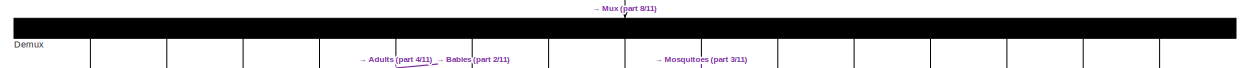
[diagram: root canvas - part 1/11, top center region]
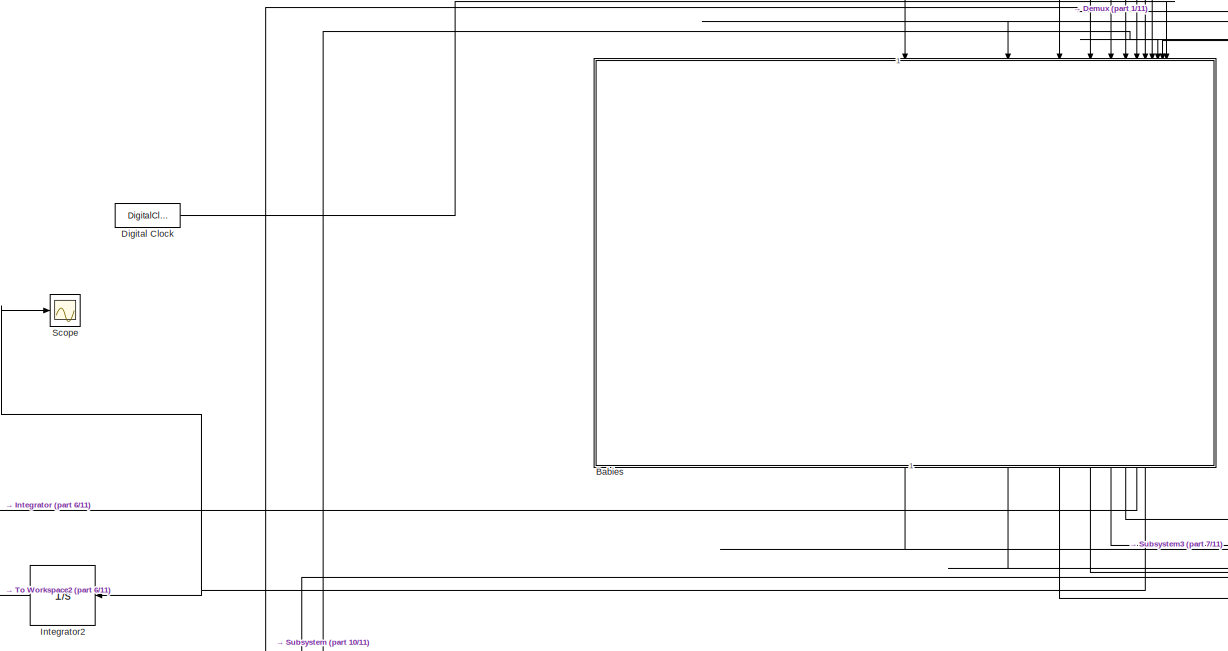
[diagram: root canvas - part 2/11, top left region]
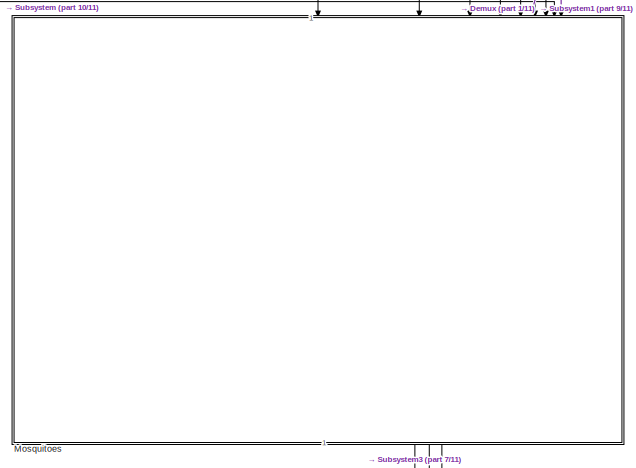
[diagram: root canvas - part 3/11, top center region]
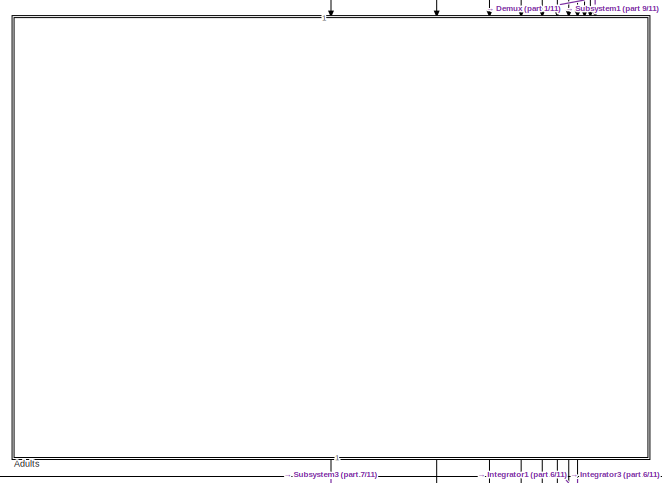
[diagram: root canvas - part 4/11, top center region]
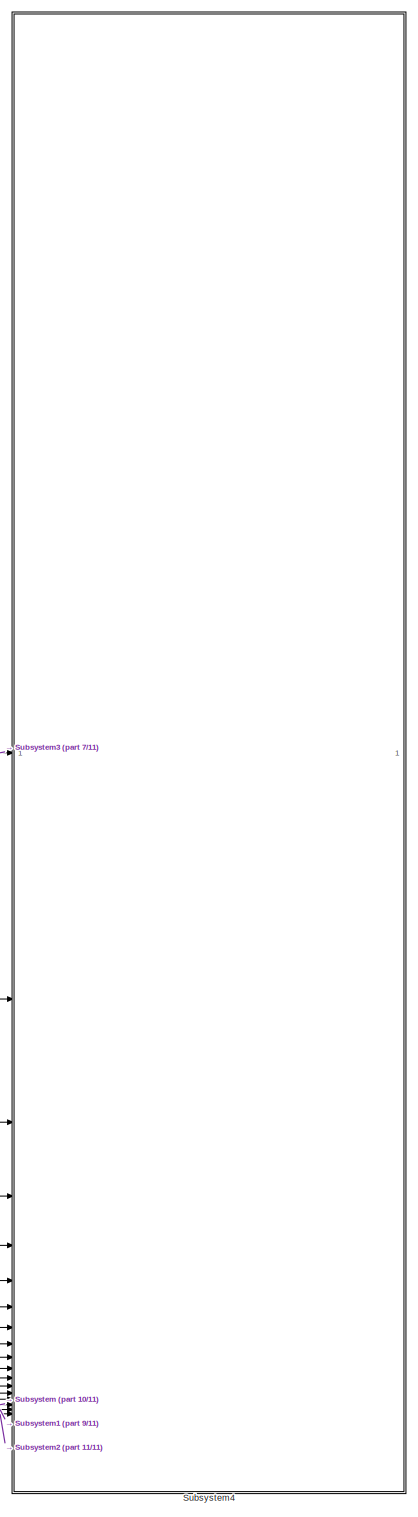
[diagram: root canvas - part 5/11, middle right region]
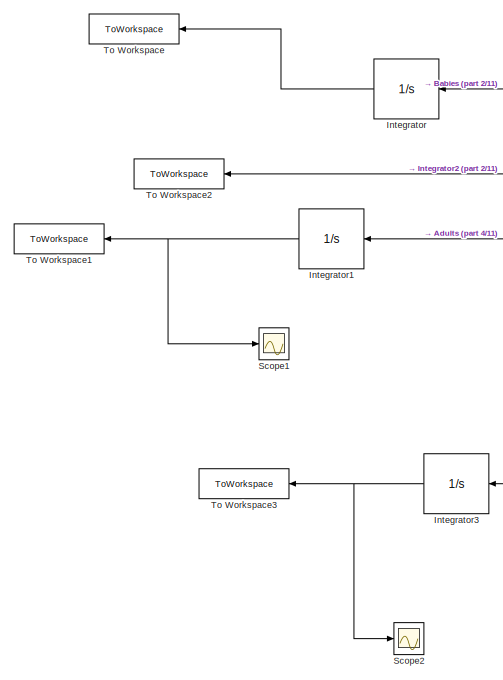
[diagram: root canvas - part 6/11, middle left region]
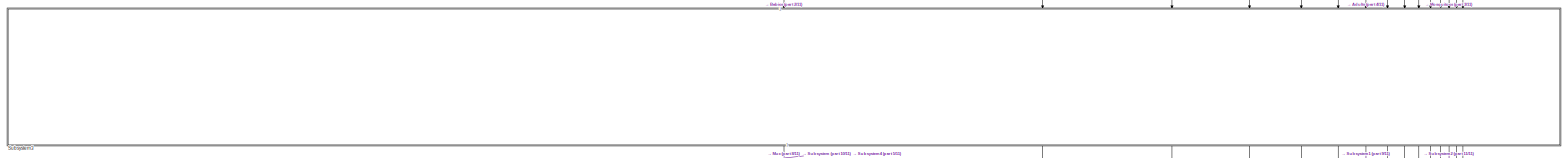
[diagram: root canvas - part 7/11, central region]
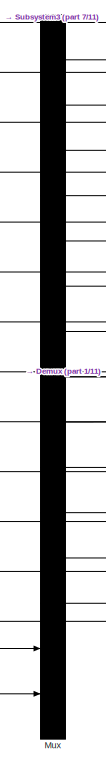
[diagram: root canvas - part 8/11, middle right region]
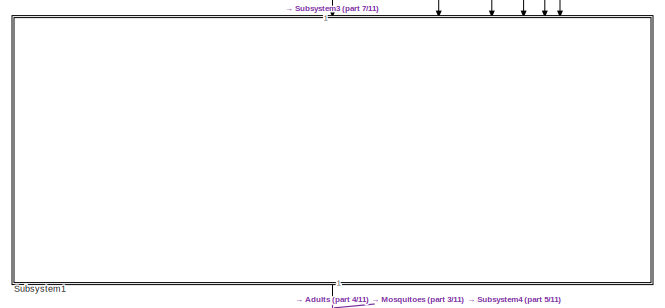
[diagram: root canvas - part 9/11, bottom center region]
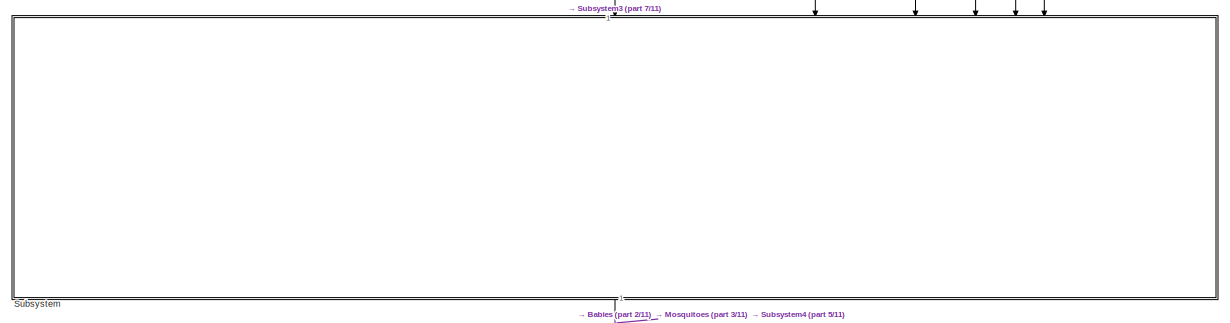
[diagram: root canvas - part 10/11, bottom left region]
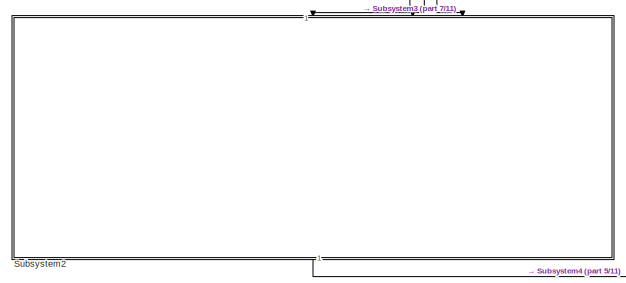
[diagram: root canvas - part 11/11, bottom center region]
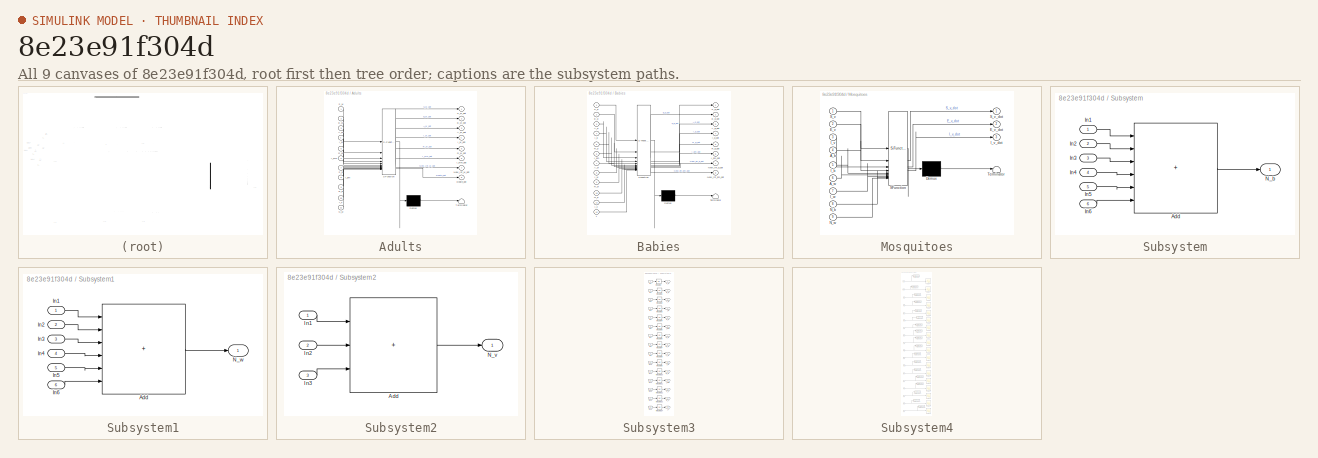
[diagram: thumbnail index - all 9 canvases of the model, root first then tree order]
MODEL slx_8e23e91f304d
KIND model
CONFIG AbsTol = auto
CONFIG EnableMultiTasking = off
CONFIG FixedStep = 0.01
CONFIG MaxStep = auto
CONFIG MinStep = auto
CONFIG RelTol = 1e-3
CONFIG SampleTimeConstraint = Unconstrained
CONFIG SolverName = ode4
CONFIG StartTime = 0.0
CONFIG StopTime = 275
BLOCK [SubSystem] Adults
  ErrorFcn = Stateflow.Translate.translate
  LibrarySourceBlock = simulink/User-Defined\nFunctions/MATLAB Function
  NameLocation = left
  PermitHierarchicalResolution = ExplicitOnly
  SFBlockType = MATLAB Function
  TreatAsAtomicUnit = on
BLOCK [Demux] Adults/ Demux 
  Outputs = 1
BLOCK [S-Function] Adults/ SFunction 
  EnableBusSupport = on
  FunctionName = sf_sfun
  Parameters = P
  PortCounts = [11 9]
  SFcnIsStateOwnerBlock = off
  SFunctionDeploymentMode = off
  Tag = Stateflow S-Function 1
BLOCK [Terminator] Adults/ Terminator 
BLOCK [Inport] Adults/A_w
  Port = 3
BLOCK [Outport] Adults/A_w_dot
  Port = 3
BLOCK [Outport] Adults/Death_dot
  Port = 8
BLOCK [Inport] Adults/E_w
  Port = 2
BLOCK [Outport] Adults/E_w_dot
  Port = 2
BLOCK [Inport] Adults/I_bm
  Port = 8
BLOCK [Inport] Adults/I_v
  Port = 10
BLOCK [Inport] Adults/I_w
  Port = 4
BLOCK [Outport] Adults/I_w_dot
  Port = 4
BLOCK [Inport] Adults/I_wm
  Port = 6
BLOCK [Outport] Adults/I_wm_dot
  Port = 6
BLOCK [Inport] Adults/N_w
  Port = 11
BLOCK [Outport] Adults/New_Inf_w_dot
  Port = 7
BLOCK [Inport] Adults/R_b
  Port = 9
BLOCK [Inport] Adults/R_w
  Port = 5
BLOCK [Outport] Adults/R_w_dot
  Port = 5
BLOCK [Inport] Adults/S_b
  Port = 7
BLOCK [Inport] Adults/S_w
BLOCK [Outport] Adults/S_w_dot
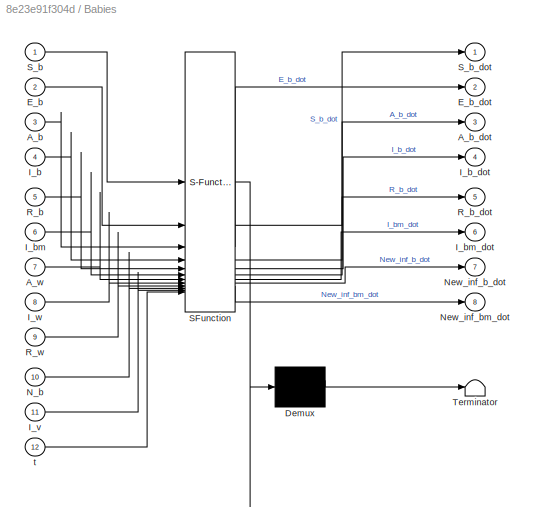
BLOCK [SubSystem] Babies
  ErrorFcn = Stateflow.Translate.translate
  LibrarySourceBlock = simulink/User-Defined\nFunctions/MATLAB Function
  NameLocation = left
  PermitHierarchicalResolution = ExplicitOnly
  SFBlockType = MATLAB Function
  TreatAsAtomicUnit = on
BLOCK [Demux] Babies/ Demux 
  Outputs = 1
BLOCK [S-Function] Babies/ SFunction 
  EnableBusSupport = on
  FunctionName = sf_sfun
  Parameters = P
  PortCounts = [12 9]
  SFcnIsStateOwnerBlock = off
  SFunctionDeploymentMode = off
  Tag = Stateflow S-Function 2
BLOCK [Terminator] Babies/ Terminator 
BLOCK [Inport] Babies/A_b
  Port = 3
BLOCK [Outport] Babies/A_b_dot
  Port = 3
BLOCK [Inport] Babies/A_w
  Port = 7
BLOCK [Inport] Babies/E_b
  Port = 2
BLOCK [Outport] Babies/E_b_dot
  Port = 2
BLOCK [Inport] Babies/I_b
  Port = 4
BLOCK [Outport] Babies/I_b_dot
  Port = 4
BLOCK [Inport] Babies/I_bm
  Port = 6
BLOCK [Outport] Babies/I_bm_dot
  Port = 6
BLOCK [Inport] Babies/I_v
  Port = 11
BLOCK [Inport] Babies/I_w
  Port = 8
BLOCK [Inport] Babies/N_b
  Port = 10
BLOCK [Outport] Babies/New_inf_b_dot
  Port = 7
BLOCK [Outport] Babies/New_inf_bm_dot
  Port = 8
BLOCK [Inport] Babies/R_b
  Port = 5
BLOCK [Outport] Babies/R_b_dot
  Port = 5
BLOCK [Inport] Babies/R_w
  Port = 9
BLOCK [Inport] Babies/S_b
BLOCK [Outport] Babies/S_b_dot
BLOCK [Inport] Babies/t
  Port = 12
BLOCK [Demux] Demux
  NameLocation = left
  Outputs = 15
BLOCK [DigitalClock] Digital Clock
BLOCK [Integrator] Integrator
  NameLocation = top
BLOCK [Integrator] Integrator1
  NameLocation = top
BLOCK [Integrator] Integrator2
  NameLocation = top
BLOCK [Integrator] Integrator3
  NameLocation = top
BLOCK [SubSystem] Mosquitoes
  ErrorFcn = Stateflow.Translate.translate
  LibrarySourceBlock = simulink/User-Defined\nFunctions/MATLAB Function
  NameLocation = left
  PermitHierarchicalResolution = ExplicitOnly
  SFBlockType = MATLAB Function
  TreatAsAtomicUnit = on
BLOCK [Demux] Mosquitoes/ Demux 
  Outputs = 1
BLOCK [S-Function] Mosquitoes/ SFunction 
  EnableBusSupport = on
  FunctionName = sf_sfun
  Parameters = P
  PortCounts = [9 4]
  SFcnIsStateOwnerBlock = off
  SFunctionDeploymentMode = off
  Tag = Stateflow S-Function 3
BLOCK [Terminator] Mosquitoes/ Terminator 
BLOCK [Inport] Mosquitoes/A_b
  Port = 4
BLOCK [Inport] Mosquitoes/A_w
  Port = 6
BLOCK [Inport] Mosquitoes/E_v
  Port = 2
BLOCK [Outport] Mosquitoes/E_v_dot
  Port = 2
BLOCK [Inport] Mosquitoes/I_b
  Port = 5
BLOCK [Inport] Mosquitoes/I_v
  Port = 3
BLOCK [Outport] Mosquitoes/I_v_dot
  Port = 3
BLOCK [Inport] Mosquitoes/I_w
  Port = 7
BLOCK [Inport] Mosquitoes/N_b
  Port = 8
BLOCK [Inport] Mosquitoes/N_w
  Port = 9
BLOCK [Inport] Mosquitoes/S_v
BLOCK [Outport] Mosquitoes/S_v_dot
BLOCK [Mux] Mux
  DisplayOption = bar
  Inputs = 15
BLOCK [Scope] Scope
  Floating = off
  NumInputPorts = 1
  ScopeSpecificationString = Simulink.scopes.TimeScopeBlockCfg('CurrentConfiguration', extmgr.ConfigurationSet(extmgr.Configuration('Core','General UI',true),extmgr.Configuration('Core','Source UI',true),extmgr.Configuration('Sources','WiredSimulink',true,'DataLoggingVariableName','ScopeData1'),extmgr.Configuration('Visuals','Time Domain',true,'SerializedDisplays',{struct('MinYLimReal','-0.03641','MaxYLimReal','0.32766','YLab...<+1453ch>
BLOCK [Scope] Scope1
  Floating = off
  NumInputPorts = 1
  ScopeSpecificationString = Simulink.scopes.TimeScopeBlockCfg('CurrentConfiguration', extmgr.ConfigurationSet(extmgr.Configuration('Core','General UI',true),extmgr.Configuration('Core','Source UI',true),extmgr.Configuration('Sources','WiredSimulink',true,'DataLoggingVariableName','ScopeData1'),extmgr.Configuration('Visuals','Time Domain',true,'SerializedDisplays',{struct('MinYLimReal','-742.13136','MaxYLimReal','6679.18228',...<+1388ch>
BLOCK [Scope] Scope2
  Floating = off
  NumInputPorts = 1
  ScopeSpecificationString = Simulink.scopes.TimeScopeBlockCfg('CurrentConfiguration', extmgr.ConfigurationSet(extmgr.Configuration('Core','General UI',true),extmgr.Configuration('Core','Source UI',true),extmgr.Configuration('Sources','WiredSimulink',true,'DataLoggingVariableName','ScopeData2'),extmgr.Configuration('Visuals','Time Domain',true,'SerializedDisplays',{struct('MinYLimReal','-8.56473','MaxYLimReal','77.08261','YLa...<+1374ch>
BLOCK [SubSystem] Subsystem
  NameLocation = left
BLOCK [Sum] Subsystem/Add
  IconShape = rectangular
  Inputs = ++++++
BLOCK [Inport] Subsystem/In1
BLOCK [Inport] Subsystem/In2
  Port = 2
BLOCK [Inport] Subsystem/In3
  Port = 3
BLOCK [Inport] Subsystem/In4
  Port = 4
BLOCK [Inport] Subsystem/In5
  Port = 5
BLOCK [Inport] Subsystem/In6
  Port = 6
BLOCK [Outport] Subsystem/N_b
BLOCK [SubSystem] Subsystem1
  NameLocation = left
BLOCK [Sum] Subsystem1/Add
  IconShape = rectangular
  Inputs = ++++++
BLOCK [Inport] Subsystem1/In1
BLOCK [Inport] Subsystem1/In2
  Port = 2
BLOCK [Inport] Subsystem1/In3
  Port = 3
BLOCK [Inport] Subsystem1/In4
  Port = 4
BLOCK [Inport] Subsystem1/In5
  Port = 5
BLOCK [Inport] Subsystem1/In6
  Port = 6
BLOCK [Outport] Subsystem1/N_w
BLOCK [SubSystem] Subsystem2
  NameLocation = left
BLOCK [Sum] Subsystem2/Add
  IconShape = rectangular
  Inputs = +++
BLOCK [Inport] Subsystem2/In1
BLOCK [Inport] Subsystem2/In2
  Port = 2
BLOCK [Inport] Subsystem2/In3
  Port = 3
BLOCK [Outport] Subsystem2/N_v
BLOCK [SubSystem] Subsystem3
  NameLocation = left
BLOCK [Outport] Subsystem3/A_b
  NameLocation = top
  Port = 3
BLOCK [Outport] Subsystem3/A_w
  NameLocation = top
  Port = 9
BLOCK [Outport] Subsystem3/E_b
  NameLocation = top
  Port = 2
BLOCK [Outport] Subsystem3/E_v
  NameLocation = top
  Port = 14
BLOCK [Outport] Subsystem3/E_w
  NameLocation = top
  Port = 8
BLOCK [Outport] Subsystem3/I_b
  NameLocation = top
  Port = 4
BLOCK [Outport] Subsystem3/I_bm
  NameLocation = top
  Port = 6
BLOCK [Outport] Subsystem3/I_v
  NameLocation = top
  Port = 15
BLOCK [Outport] Subsystem3/I_w
  NameLocation = top
  Port = 10
BLOCK [Outport] Subsystem3/I_wm
  NameLocation = top
  Port = 12
BLOCK [Inport] Subsystem3/In1
  NameLocation = top
BLOCK [Inport] Subsystem3/In10
  NameLocation = top
  Port = 10
BLOCK [Inport] Subsystem3/In11
  NameLocation = top
  Port = 11
BLOCK [Inport] Subsystem3/In12
  NameLocation = top
  Port = 12
BLOCK [Inport] Subsystem3/In13
  NameLocation = top
  Port = 13
BLOCK [Inport] Subsystem3/In14
  NameLocation = top
  Port = 14
BLOCK [Inport] Subsystem3/In15
  NameLocation = top
  Port = 15
BLOCK [Inport] Subsystem3/In2
  NameLocation = top
  Port = 2
BLOCK [Inport] Subsystem3/In3
  NameLocation = top
  Port = 3
BLOCK [Inport] Subsystem3/In4
  NameLocation = top
  Port = 4
BLOCK [Inport] Subsystem3/In5
  NameLocation = top
  Port = 5
BLOCK [Inport] Subsystem3/In6
  NameLocation = top
  Port = 6
BLOCK [Inport] Subsystem3/In7
  NameLocation = top
  Port = 7
BLOCK [Inport] Subsystem3/In8
  NameLocation = top
  Port = 8
BLOCK [Inport] Subsystem3/In9
  NameLocation = top
  Port = 9
BLOCK [Integrator] Subsystem3/Integrator
  ContinuousStateAttributes = 'S_b'
  InitialCondition = S_b_0
BLOCK [Integrator] Subsystem3/Integrator1
  ContinuousStateAttributes = 'E_b'
  InitialCondition = E_b_0
BLOCK [Integrator] Subsystem3/Integrator10
  ContinuousStateAttributes = 'R_w'
  InitialCondition = R_w_0
BLOCK [Integrator] Subsystem3/Integrator11
  ContinuousStateAttributes = 'I_wm'
  InitialCondition = I_wm_0
BLOCK [Integrator] Subsystem3/Integrator12
  ContinuousStateAttributes = 'S_v'
  InitialCondition = S_v_0
BLOCK [Integrator] Subsystem3/Integrator13
  ContinuousStateAttributes = 'E_v'
  InitialCondition = E_v_0
BLOCK [Integrator] Subsystem3/Integrator14
  ContinuousStateAttributes = 'I_v'
  InitialCondition = I_v_0
BLOCK [Integrator] Subsystem3/Integrator2
  ContinuousStateAttributes = 'A_b'
  InitialCondition = A_b_0
BLOCK [Integrator] Subsystem3/Integrator3
  ContinuousStateAttributes = 'I_b'
  InitialCondition = I_b_0
BLOCK [Integrator] Subsystem3/Integrator4
  ContinuousStateAttributes = 'R_b'
  InitialCondition = R_b_0
BLOCK [Integrator] Subsystem3/Integrator5
  ContinuousStateAttributes = 'I_bm'
  InitialCondition = I_bm_0
BLOCK [Integrator] Subsystem3/Integrator6
  ContinuousStateAttributes = 'S_w'
  InitialCondition = S_w_0
BLOCK [Integrator] Subsystem3/Integrator7
  ContinuousStateAttributes = 'E_w'
  InitialCondition = E_w_0
BLOCK [Integrator] Subsystem3/Integrator8
  ContinuousStateAttributes = 'A_w'
  InitialCondition = A_w_0
BLOCK [Integrator] Subsystem3/Integrator9
  ContinuousStateAttributes = 'I_w'
  InitialCondition = I_w_0
BLOCK [Outport] Subsystem3/R_b
  NameLocation = top
  Port = 5
BLOCK [Outport] Subsystem3/R_w
  NameLocation = top
  Port = 11
BLOCK [Outport] Subsystem3/S_b
  NameLocation = top
BLOCK [Outport] Subsystem3/S_v
  NameLocation = top
  Port = 13
BLOCK [Outport] Subsystem3/S_w
  NameLocation = top
  Port = 7
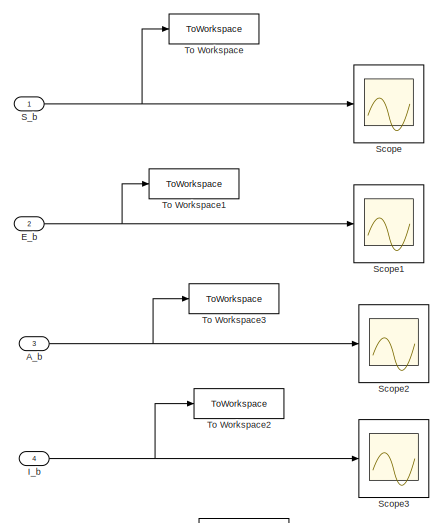
[diagram: Subsystem4 - part 1/2, full width, top band]
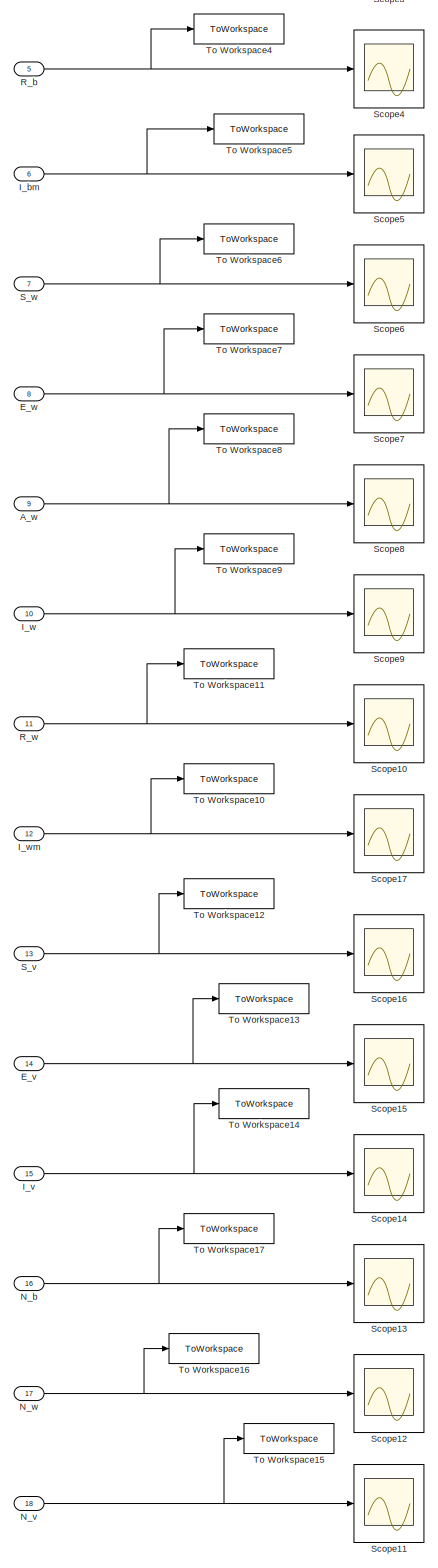
[diagram: Subsystem4 - part 2/2, most of the canvas]
BLOCK [SubSystem] Subsystem4
BLOCK [Inport] Subsystem4/A_b
  Port = 3
BLOCK [Inport] Subsystem4/A_w
  Port = 9
BLOCK [Inport] Subsystem4/E_b
  Port = 2
BLOCK [Inport] Subsystem4/E_v
  Port = 14
BLOCK [Inport] Subsystem4/E_w
  Port = 8
BLOCK [Inport] Subsystem4/I_b
  Port = 4
BLOCK [Inport] Subsystem4/I_bm
  Port = 6
BLOCK [Inport] Subsystem4/I_v
  Port = 15
BLOCK [Inport] Subsystem4/I_w
  Port = 10
BLOCK [Inport] Subsystem4/I_wm
  Port = 12
BLOCK [Inport] Subsystem4/N_b
  Port = 16
BLOCK [Inport] Subsystem4/N_v
  Port = 18
BLOCK [Inport] Subsystem4/N_w
  Port = 17
BLOCK [Inport] Subsystem4/R_b
  Port = 5
BLOCK [Inport] Subsystem4/R_w
  Port = 11
BLOCK [Inport] Subsystem4/S_b
BLOCK [Inport] Subsystem4/S_v
  Port = 13
BLOCK [Inport] Subsystem4/S_w
  Port = 7
BLOCK [Scope] Subsystem4/Scope
  Floating = off
  NumInputPorts = 1
  ScopeSpecificationString = Simulink.scopes.TimeScopeBlockCfg('CurrentConfiguration', extmgr.ConfigurationSet(extmgr.Configuration('Core','General UI',true),extmgr.Configuration('Core','Source UI',true),extmgr.Configuration('Sources','WiredSimulink',true),extmgr.Configuration('Visuals','Time Domain',true,'SerializedDisplays',{struct('MinYLimReal','-525.00383','MaxYLimReal','4725.00043','YLabelReal','','MinYLimMag',' 0.00000'...<+1414ch>
BLOCK [Scope] Subsystem4/Scope1
  Floating = off
  NumInputPorts = 1
  ScopeSpecificationString = Simulink.scopes.TimeScopeBlockCfg('CurrentConfiguration', extmgr.ConfigurationSet(extmgr.Configuration('Core','General UI',true),extmgr.Configuration('Core','Source UI',true),extmgr.Configuration('Sources','WiredSimulink',true,'DataLoggingVariableName','ScopeData1'),extmgr.Configuration('Visuals','Time Domain',true,'SerializedDisplays',{struct('MinYLimReal','-104.64701','MaxYLimReal','941.82311','...<+1456ch>
BLOCK [Scope] Subsystem4/Scope10
  Floating = off
  NumInputPorts = 1
  ScopeSpecificationString = Simulink.scopes.TimeScopeBlockCfg('CurrentConfiguration', extmgr.ConfigurationSet(extmgr.Configuration('Core','General UI',true),extmgr.Configuration('Core','Source UI',true),extmgr.Configuration('Sources','WiredSimulink',true,'DataLoggingVariableName','ScopeData10'),extmgr.Configuration('Visuals','Time Domain',true,'SerializedDisplays',{struct('MinYLimReal','-1300.75279','MaxYLimReal','11706.7751...<+1451ch>
BLOCK [Scope] Subsystem4/Scope11
  Floating = off
  NumInputPorts = 1
  ScopeSpecificationString = Simulink.scopes.TimeScopeBlockCfg('CurrentConfiguration', extmgr.ConfigurationSet(extmgr.Configuration('Core','General UI',true),extmgr.Configuration('Core','Source UI',true),extmgr.Configuration('Sources','WiredSimulink',true,'DataLoggingVariableName','ScopeData11'),extmgr.Configuration('Visuals','Time Domain',true,'SerializedDisplays',{struct('MinYLimReal','-700.00000','MaxYLimReal','111300.0000...<+1460ch>
BLOCK [Scope] Subsystem4/Scope12
  Floating = off
  NumInputPorts = 1
  ScopeSpecificationString = Simulink.scopes.TimeScopeBlockCfg('CurrentConfiguration', extmgr.ConfigurationSet(extmgr.Configuration('Core','General UI',true),extmgr.Configuration('Core','Source UI',true),extmgr.Configuration('Sources','WiredSimulink',true,'DataLoggingVariableName','ScopeData12'),extmgr.Configuration('Visuals','Time Domain',true,'SerializedDisplays',{struct('MinYLimReal','1456.21842','MaxYLimReal','2620.43957'...<+1458ch>
BLOCK [Scope] Subsystem4/Scope13
  Floating = off
  NumInputPorts = 1
  ScopeSpecificationString = Simulink.scopes.TimeScopeBlockCfg('CurrentConfiguration', extmgr.ConfigurationSet(extmgr.Configuration('Core','General UI',true),extmgr.Configuration('Core','Source UI',true),extmgr.Configuration('Sources','WiredSimulink',true,'DataLoggingVariableName','ScopeData13'),extmgr.Configuration('Visuals','Time Domain',true,'SerializedDisplays',{struct('MinYLimReal','2115.08159','MaxYLimReal','4764.99093'...<+1458ch>
BLOCK [Scope] Subsystem4/Scope14
  Floating = off
  NumInputPorts = 1
  ScopeSpecificationString = Simulink.scopes.TimeScopeBlockCfg('CurrentConfiguration', extmgr.ConfigurationSet(extmgr.Configuration('Core','General UI',true),extmgr.Configuration('Core','Source UI',true),extmgr.Configuration('Sources','WiredSimulink',true,'DataLoggingVariableName','ScopeData14'),extmgr.Configuration('Visuals','Time Domain',true,'SerializedDisplays',{struct('MinYLimReal','-83777.46147','MaxYLimReal','173435.01...<+1475ch>
BLOCK [Scope] Subsystem4/Scope15
  Floating = off
  NumInputPorts = 1
  ScopeSpecificationString = Simulink.scopes.TimeScopeBlockCfg('CurrentConfiguration', extmgr.ConfigurationSet(extmgr.Configuration('Core','General UI',true),extmgr.Configuration('Core','Source UI',true),extmgr.Configuration('Sources','WiredSimulink',true,'DataLoggingVariableName','ScopeData15'),extmgr.Configuration('Visuals','Time Domain',true,'SerializedDisplays',{struct('MinYLimReal','-272.89082','MaxYLimReal','2456.01736'...<+1454ch>
BLOCK [Scope] Subsystem4/Scope16
  Floating = off
  NumInputPorts = 1
  ScopeSpecificationString = Simulink.scopes.TimeScopeBlockCfg('CurrentConfiguration', extmgr.ConfigurationSet(extmgr.Configuration('Core','General UI',true),extmgr.Configuration('Core','Source UI',true),extmgr.Configuration('Sources','WiredSimulink',true,'DataLoggingVariableName','ScopeData16'),extmgr.Configuration('Visuals','Time Domain',true,'SerializedDisplays',{struct('MinYLimReal','8532.08555','MaxYLimReal','11830.70305...<+1466ch>
BLOCK [Scope] Subsystem4/Scope17
  Floating = off
  NumInputPorts = 1
  ScopeSpecificationString = Simulink.scopes.TimeScopeBlockCfg('CurrentConfiguration', extmgr.ConfigurationSet(extmgr.Configuration('Core','General UI',true),extmgr.Configuration('Core','Source UI',true),extmgr.Configuration('Sources','WiredSimulink',true,'DataLoggingVariableName','ScopeData17'),extmgr.Configuration('Visuals','Time Domain',true,'SerializedDisplays',{struct('MinYLimReal','-2.37196','MaxYLimReal','21.34763','YL...<+1439ch>
BLOCK [Scope] Subsystem4/Scope2
  Floating = off
  NumInputPorts = 1
  ScopeSpecificationString = Simulink.scopes.TimeScopeBlockCfg('CurrentConfiguration', extmgr.ConfigurationSet(extmgr.Configuration('Core','General UI',true),extmgr.Configuration('Core','Source UI',true),extmgr.Configuration('Sources','WiredSimulink',true,'DataLoggingVariableName','ScopeData2'),extmgr.Configuration('Visuals','Time Domain',true,'SerializedDisplays',{struct('MinYLimReal','-86.01143','MaxYLimReal','774.10281','Y...<+1408ch>
BLOCK [Scope] Subsystem4/Scope3
  Floating = off
  NumInputPorts = 1
  ScopeSpecificationString = Simulink.scopes.TimeScopeBlockCfg('CurrentConfiguration', extmgr.ConfigurationSet(extmgr.Configuration('Core','General UI',true),extmgr.Configuration('Core','Source UI',true),extmgr.Configuration('Sources','WiredSimulink',true,'DataLoggingVariableName','ScopeData3'),extmgr.Configuration('Visuals','Time Domain',true,'SerializedDisplays',{struct('MinYLimReal','-50.80246','MaxYLimReal','457.22217','Y...<+1452ch>
BLOCK [Scope] Subsystem4/Scope4
  Floating = off
  NumInputPorts = 1
  ScopeSpecificationString = Simulink.scopes.TimeScopeBlockCfg('CurrentConfiguration', extmgr.ConfigurationSet(extmgr.Configuration('Core','General UI',true),extmgr.Configuration('Core','Source UI',true),extmgr.Configuration('Sources','WiredSimulink',true,'DataLoggingVariableName','ScopeData4'),extmgr.Configuration('Visuals','Time Domain',true,'SerializedDisplays',{struct('MinYLimReal','-601.5074','MaxYLimReal','5413.56656','...<+1439ch>
BLOCK [Scope] Subsystem4/Scope5
  Floating = off
  NumInputPorts = 1
  ScopeSpecificationString = Simulink.scopes.TimeScopeBlockCfg('CurrentConfiguration', extmgr.ConfigurationSet(extmgr.Configuration('Core','General UI',true),extmgr.Configuration('Core','Source UI',true),extmgr.Configuration('Sources','WiredSimulink',true,'DataLoggingVariableName','ScopeData5'),extmgr.Configuration('Visuals','Time Domain',true,'SerializedDisplays',{struct('MinYLimReal','-0.58214','MaxYLimReal','5.23925','YLab...<+1436ch>
BLOCK [Scope] Subsystem4/Scope6
  Floating = off
  NumInputPorts = 1
  ScopeSpecificationString = Simulink.scopes.TimeScopeBlockCfg('CurrentConfiguration', extmgr.ConfigurationSet(extmgr.Configuration('Core','General UI',true),extmgr.Configuration('Core','Source UI',true),extmgr.Configuration('Sources','WiredSimulink',true,'DataLoggingVariableName','ScopeData6'),extmgr.Configuration('Visuals','Time Domain',true,'SerializedDisplays',{struct('MinYLimReal','-999.9365','MaxYLimReal','8999.99294','...<+1457ch>
BLOCK [Scope] Subsystem4/Scope7
  Floating = off
  NumInputPorts = 1
  ScopeSpecificationString = Simulink.scopes.TimeScopeBlockCfg('CurrentConfiguration', extmgr.ConfigurationSet(extmgr.Configuration('Core','General UI',true),extmgr.Configuration('Core','Source UI',true),extmgr.Configuration('Sources','WiredSimulink',true,'DataLoggingVariableName','ScopeData7'),extmgr.Configuration('Visuals','Time Domain',true,'SerializedDisplays',{struct('MinYLimReal','-349.86268','MaxYLimReal','3148.76414',...<+1380ch>
BLOCK [Scope] Subsystem4/Scope8
  Floating = off
  NumInputPorts = 1
  ScopeSpecificationString = Simulink.scopes.TimeScopeBlockCfg('CurrentConfiguration', extmgr.ConfigurationSet(extmgr.Configuration('Core','General UI',true),extmgr.Configuration('Core','Source UI',true),extmgr.Configuration('Sources','WiredSimulink',true,'DataLoggingVariableName','ScopeData8'),extmgr.Configuration('Visuals','Time Domain',true,'SerializedDisplays',{struct('MinYLimReal','-32.83505','MaxYLimReal','295.51541','Y...<+1426ch>
BLOCK [Scope] Subsystem4/Scope9
  Floating = off
  NumInputPorts = 1
  ScopeSpecificationString = Simulink.scopes.TimeScopeBlockCfg('CurrentConfiguration', extmgr.ConfigurationSet(extmgr.Configuration('Core','General UI',true),extmgr.Configuration('Core','Source UI',true),extmgr.Configuration('Sources','WiredSimulink',true,'DataLoggingVariableName','ScopeData9'),extmgr.Configuration('Visuals','Time Domain',true,'SerializedDisplays',{struct('MinYLimReal','-78.96555','MaxYLimReal','710.69904','Y...<+1404ch>
BLOCK [ToWorkspace] Subsystem4/To Workspace
  FixptAsFi = on
  MaxDataPoints = inf
  SampleTime = 1
  VariableName = S_b_plot
BLOCK [ToWorkspace] Subsystem4/To Workspace1
  FixptAsFi = on
  MaxDataPoints = inf
  SampleTime = 1
  VariableName = E_b_plot
BLOCK [ToWorkspace] Subsystem4/To Workspace10
  FixptAsFi = on
  MaxDataPoints = inf
  SampleTime = 1
  VariableName = I_wm_plot
BLOCK [ToWorkspace] Subsystem4/To Workspace11
  FixptAsFi = on
  MaxDataPoints = inf
  SampleTime = 1
  VariableName = R_w_plot
BLOCK [ToWorkspace] Subsystem4/To Workspace12
  FixptAsFi = on
  MaxDataPoints = inf
  SampleTime = 1
  VariableName = S_v_plot
BLOCK [ToWorkspace] Subsystem4/To Workspace13
  FixptAsFi = on
  MaxDataPoints = inf
  SampleTime = 1
  VariableName = E_v_plot
BLOCK [ToWorkspace] Subsystem4/To Workspace14
  FixptAsFi = on
  MaxDataPoints = inf
  SampleTime = 1
  VariableName = I_v_plot
BLOCK [ToWorkspace] Subsystem4/To Workspace15
  FixptAsFi = on
  MaxDataPoints = inf
  SampleTime = 1
  VariableName = N_v_plot
BLOCK [ToWorkspace] Subsystem4/To Workspace16
  FixptAsFi = on
  MaxDataPoints = inf
  SampleTime = 1
  VariableName = N_w_plot
BLOCK [ToWorkspace] Subsystem4/To Workspace17
  FixptAsFi = on
  MaxDataPoints = inf
  SampleTime = 1
  VariableName = N_b_plot
BLOCK [ToWorkspace] Subsystem4/To Workspace2
  FixptAsFi = on
  MaxDataPoints = inf
  SampleTime = 1
  VariableName = I_b_plot
BLOCK [ToWorkspace] Subsystem4/To Workspace3
  FixptAsFi = on
  MaxDataPoints = inf
  SampleTime = 1
  VariableName = A_b_plot
BLOCK [ToWorkspace] Subsystem4/To Workspace4
  FixptAsFi = on
  MaxDataPoints = inf
  SampleTime = 1
  VariableName = R_b_plot
BLOCK [ToWorkspace] Subsystem4/To Workspace5
  FixptAsFi = on
  MaxDataPoints = inf
  SampleTime = 1
  VariableName = I_bm_plot
BLOCK [ToWorkspace] Subsystem4/To Workspace6
  FixptAsFi = on
  MaxDataPoints = inf
  SampleTime = 1
  VariableName = S_w_plot
BLOCK [ToWorkspace] Subsystem4/To Workspace7
  FixptAsFi = on
  MaxDataPoints = inf
  SampleTime = 1
  VariableName = E_w_plot
BLOCK [ToWorkspace] Subsystem4/To Workspace8
  FixptAsFi = on
  MaxDataPoints = inf
  SampleTime = 1
  VariableName = A_w_plot
BLOCK [ToWorkspace] Subsystem4/To Workspace9
  FixptAsFi = on
  MaxDataPoints = inf
  SampleTime = 1
  VariableName = I_w_plot
BLOCK [ToWorkspace] To Workspace
  FixptAsFi = on
  MaxDataPoints = inf
  NameLocation = top
  SampleTime = 1
  VariableName = New_inf_b
BLOCK [ToWorkspace] To Workspace1
  FixptAsFi = on
  MaxDataPoints = inf
  NameLocation = top
  SampleTime = 1
  VariableName = New_inf_w
BLOCK [ToWorkspace] To Workspace2
  FixptAsFi = on
  MaxDataPoints = inf
  NameLocation = top
  SampleTime = 1
  VariableName = New_inf_bm
BLOCK [ToWorkspace] To Workspace3
  FixptAsFi = on
  MaxDataPoints = inf
  NameLocation = top
  SampleTime = 1
  VariableName = Dead_Zika
LINE Adults:1 -> Subsystem3:7
LINE Adults:2 -> Subsystem3:8
LINE Adults:3 -> Subsystem3:9
LINE Adults:4 -> Subsystem3:10
LINE Adults:5 -> Subsystem3:11
LINE Adults:6 -> Subsystem3:12
LINE Adults:7 -> Integrator1:1
LINE Adults:8 -> Integrator3:1
LINE Babies:1 -> Subsystem3:1
LINE Babies:2 -> Subsystem3:2
LINE Babies:3 -> Subsystem3:3
LINE Babies:4 -> Subsystem3:4
LINE Babies:5 -> Subsystem3:5
LINE Babies:6 -> Subsystem3:6
LINE Babies:7 -> Integrator:1
NET Babies:8 -> Integrator2:1, Scope:1
NET Demux:1 -> Adults:7, Babies:1
NET Demux:10 -> Adults:4, Babies:8, Mosquitoes:7
NET Demux:11 -> Adults:5, Babies:9
LINE Demux:12 -> Adults:6
LINE Demux:13 -> Mosquitoes:1
LINE Demux:14 -> Mosquitoes:2
NET Demux:15 -> Adults:10, Babies:11, Mosquitoes:3
LINE Demux:2 -> Babies:2
NET Demux:3 -> Babies:3, Mosquitoes:4
NET Demux:4 -> Babies:4, Mosquitoes:5
NET Demux:5 -> Adults:9, Babies:5
NET Demux:6 -> Adults:8, Babies:6
LINE Demux:7 -> Adults:1
LINE Demux:8 -> Adults:2
NET Demux:9 -> Adults:3, Babies:7, Mosquitoes:6
LINE Digital Clock:1 -> Babies:12
NET Integrator1:1 -> Scope1:1, To Workspace1:1
LINE Integrator2:1 -> To Workspace2:1
NET Integrator3:1 -> Scope2:1, To Workspace3:1
LINE Integrator:1 -> To Workspace:1
LINE Mosquitoes:1 -> Subsystem3:13
LINE Mosquitoes:2 -> Subsystem3:14
LINE Mosquitoes:3 -> Subsystem3:15
LINE Mux:1 -> Demux:1
LINE Subsystem/Add:1 -> Subsystem/N_b:1
LINE Subsystem/In1:1 -> Subsystem/Add:1
LINE Subsystem/In2:1 -> Subsystem/Add:2
LINE Subsystem/In3:1 -> Subsystem/Add:3
LINE Subsystem/In4:1 -> Subsystem/Add:4
LINE Subsystem/In5:1 -> Subsystem/Add:5
LINE Subsystem/In6:1 -> Subsystem/Add:6
LINE Subsystem1/Add:1 -> Subsystem1/N_w:1
LINE Subsystem1/In1:1 -> Subsystem1/Add:1
LINE Subsystem1/In2:1 -> Subsystem1/Add:2
LINE Subsystem1/In3:1 -> Subsystem1/Add:3
LINE Subsystem1/In4:1 -> Subsystem1/Add:4
LINE Subsystem1/In5:1 -> Subsystem1/Add:5
LINE Subsystem1/In6:1 -> Subsystem1/Add:6
NET Subsystem1:1 -> Adults:11, Mosquitoes:9, Subsystem4:17
LINE Subsystem2/Add:1 -> Subsystem2/N_v:1
LINE Subsystem2/In1:1 -> Subsystem2/Add:1
LINE Subsystem2/In2:1 -> Subsystem2/Add:2
LINE Subsystem2/In3:1 -> Subsystem2/Add:3
LINE Subsystem2:1 -> Subsystem4:18
LINE Subsystem3/In10:1 -> Subsystem3/Integrator9:1
LINE Subsystem3/In11:1 -> Subsystem3/Integrator10:1
LINE Subsystem3/In12:1 -> Subsystem3/Integrator11:1
LINE Subsystem3/In13:1 -> Subsystem3/Integrator12:1
LINE Subsystem3/In14:1 -> Subsystem3/Integrator13:1
LINE Subsystem3/In15:1 -> Subsystem3/Integrator14:1
LINE Subsystem3/In1:1 -> Subsystem3/Integrator:1
LINE Subsystem3/In2:1 -> Subsystem3/Integrator1:1
LINE Subsystem3/In3:1 -> Subsystem3/Integrator2:1
LINE Subsystem3/In4:1 -> Subsystem3/Integrator3:1
LINE Subsystem3/In5:1 -> Subsystem3/Integrator4:1
LINE Subsystem3/In6:1 -> Subsystem3/Integrator5:1
LINE Subsystem3/In7:1 -> Subsystem3/Integrator6:1
LINE Subsystem3/In8:1 -> Subsystem3/Integrator7:1
LINE Subsystem3/In9:1 -> Subsystem3/Integrator8:1
LINE Subsystem3/Integrator10:1 -> Subsystem3/R_w:1
LINE Subsystem3/Integrator11:1 -> Subsystem3/I_wm:1
LINE Subsystem3/Integrator12:1 -> Subsystem3/S_v:1
LINE Subsystem3/Integrator13:1 -> Subsystem3/E_v:1
LINE Subsystem3/Integrator14:1 -> Subsystem3/I_v:1
LINE Subsystem3/Integrator1:1 -> Subsystem3/E_b:1
LINE Subsystem3/Integrator2:1 -> Subsystem3/A_b:1
LINE Subsystem3/Integrator3:1 -> Subsystem3/I_b:1
LINE Subsystem3/Integrator4:1 -> Subsystem3/R_b:1
LINE Subsystem3/Integrator5:1 -> Subsystem3/I_bm:1
LINE Subsystem3/Integrator6:1 -> Subsystem3/S_w:1
LINE Subsystem3/Integrator7:1 -> Subsystem3/E_w:1
LINE Subsystem3/Integrator8:1 -> Subsystem3/A_w:1
LINE Subsystem3/Integrator9:1 -> Subsystem3/I_w:1
LINE Subsystem3/Integrator:1 -> Subsystem3/S_b:1
NET Subsystem3:1 -> Mux:1, Subsystem4:1, Subsystem:1
NET Subsystem3:10 -> Mux:10, Subsystem1:4, Subsystem4:10
NET Subsystem3:11 -> Mux:11, Subsystem1:5, Subsystem4:11
NET Subsystem3:12 -> Mux:12, Subsystem1:6, Subsystem4:12
NET Subsystem3:13 -> Mux:13, Subsystem2:1, Subsystem4:13
NET Subsystem3:14 -> Mux:14, Subsystem2:2, Subsystem4:14
NET Subsystem3:15 -> Mux:15, Subsystem2:3, Subsystem4:15
NET Subsystem3:2 -> Mux:2, Subsystem4:2, Subsystem:2
NET Subsystem3:3 -> Mux:3, Subsystem4:3, Subsystem:3
NET Subsystem3:4 -> Mux:4, Subsystem4:4, Subsystem:4
NET Subsystem3:5 -> Mux:5, Subsystem4:5, Subsystem:5
NET Subsystem3:6 -> Mux:6, Subsystem4:6, Subsystem:6
NET Subsystem3:7 -> Mux:7, Subsystem1:1, Subsystem4:7
NET Subsystem3:8 -> Mux:8, Subsystem1:2, Subsystem4:8
NET Subsystem3:9 -> Mux:9, Subsystem1:3, Subsystem4:9
NET Subsystem4/A_b:1 -> Subsystem4/Scope2:1, Subsystem4/To Workspace3:1
NET Subsystem4/A_w:1 -> Subsystem4/Scope8:1, Subsystem4/To Workspace8:1
NET Subsystem4/E_b:1 -> Subsystem4/Scope1:1, Subsystem4/To Workspace1:1
NET Subsystem4/E_v:1 -> Subsystem4/Scope15:1, Subsystem4/To Workspace13:1
NET Subsystem4/E_w:1 -> Subsystem4/Scope7:1, Subsystem4/To Workspace7:1
NET Subsystem4/I_b:1 -> Subsystem4/Scope3:1, Subsystem4/To Workspace2:1
NET Subsystem4/I_bm:1 -> Subsystem4/Scope5:1, Subsystem4/To Workspace5:1
NET Subsystem4/I_v:1 -> Subsystem4/Scope14:1, Subsystem4/To Workspace14:1
NET Subsystem4/I_w:1 -> Subsystem4/Scope9:1, Subsystem4/To Workspace9:1
NET Subsystem4/I_wm:1 -> Subsystem4/Scope17:1, Subsystem4/To Workspace10:1
NET Subsystem4/N_b:1 -> Subsystem4/Scope13:1, Subsystem4/To Workspace17:1
NET Subsystem4/N_v:1 -> Subsystem4/Scope11:1, Subsystem4/To Workspace15:1
NET Subsystem4/N_w:1 -> Subsystem4/Scope12:1, Subsystem4/To Workspace16:1
NET Subsystem4/R_b:1 -> Subsystem4/Scope4:1, Subsystem4/To Workspace4:1
NET Subsystem4/R_w:1 -> Subsystem4/Scope10:1, Subsystem4/To Workspace11:1
NET Subsystem4/S_b:1 -> Subsystem4/Scope:1, Subsystem4/To Workspace:1
NET Subsystem4/S_v:1 -> Subsystem4/Scope16:1, Subsystem4/To Workspace12:1
NET Subsystem4/S_w:1 -> Subsystem4/Scope6:1, Subsystem4/To Workspace6:1
NET Subsystem:1 -> Babies:10, Mosquitoes:8, Subsystem4:16
note: NET lines group one-source signal fan-out (src -> all destinations, sorted); 1:1 wires keep LINE
CHART Adults states=1 transitions=1
  STATE_LABEL 'eML_blk_kernel()'
  STATE_LABEL 'SCRIPT:\nfunction [S_w_dot, E_w_dot, A_w_dot, I_w_dot, R_w_dot, I_wm_dot, New_Inf_w_dot, Death_dot] = Adults(S_w,...\n    E_w, A_w, I_w, R_w, I_wm, S_b, I_bm, R_b, I_v, N_w, P)\n\nalpha = P(1);\nrho_b = P(2);\nrho_w = P(3);\nbeta_w = P(4);\nsigma_w = P(5);\ngamma_w = P(6);\nmu_w = P(7);\npi_b = P(8);\nbeta_b = P(9);\nsigma_b =  P(10);\ngamma_b = P(11);\nmu_b =  P(12);\npi_v =  P(13);\nbeta_v = P(14);\nb_v = P(15);\n...<+510ch>'
CHART Babies states=1 transitions=1
  STATE_LABEL 'eML_blk_kernel()'
  STATE_LABEL 'SCRIPT:\nfunction [S_b_dot, E_b_dot, A_b_dot, I_b_dot, R_b_dot, I_bm_dot,New_inf_b_dot, New_inf_bm_dot] = Babies( ... \n    S_b, E_b, A_b, I_b, R_b, I_bm, A_w, I_w, R_w, P, N_b, I_v,t)\nalpha = P(1);\nrho_b = P(2);\nrho_w = P(3);\nbeta_w = P(4);\nsigma_w = P(5);\ngamma_w = P(6);\nmu_w = P(7);\npi_b = P(8);\nbeta_b = P(9);\nsigma_b =  P(10);\ngamma_b = P(11);\nmu_b =  P(12);\npi_v =  P(13);\nbeta_v = P(14);\nb_v = ...<+878ch>'
CHART Mosquitoes states=1 transitions=1
  STATE_LABEL 'eML_blk_kernel()'
  STATE_LABEL 'SCRIPT:\nfunction [S_v_dot, E_v_dot, I_v_dot] = Mosquitoes(S_v, E_v, I_v, ... \n    A_b, I_b, A_w, I_w, N_b, N_w, P)\n\nalpha = P(1);\nrho_b = P(2);\nrho_w = P(3);\nbeta_w = P(4);\nsigma_w = P(5);\ngamma_w = P(6);\nmu_w = P(7);\npi_b = P(8);\nbeta_b = P(9);\nsigma_b =  P(10);\ngamma_b = P(11);\nmu_b =  P(12);\npi_v =  P(13);\nbeta_v = P(14);\nb_v = P(15);\nsigma_v = P(16);\nmu_v = P(17);\np = P(18);\neta = P(19);\nq_a =...<+263ch>'
CHART  states=0 transitions=0
CHART  states=0 transitions=0
CHART  states=0 transitions=0
